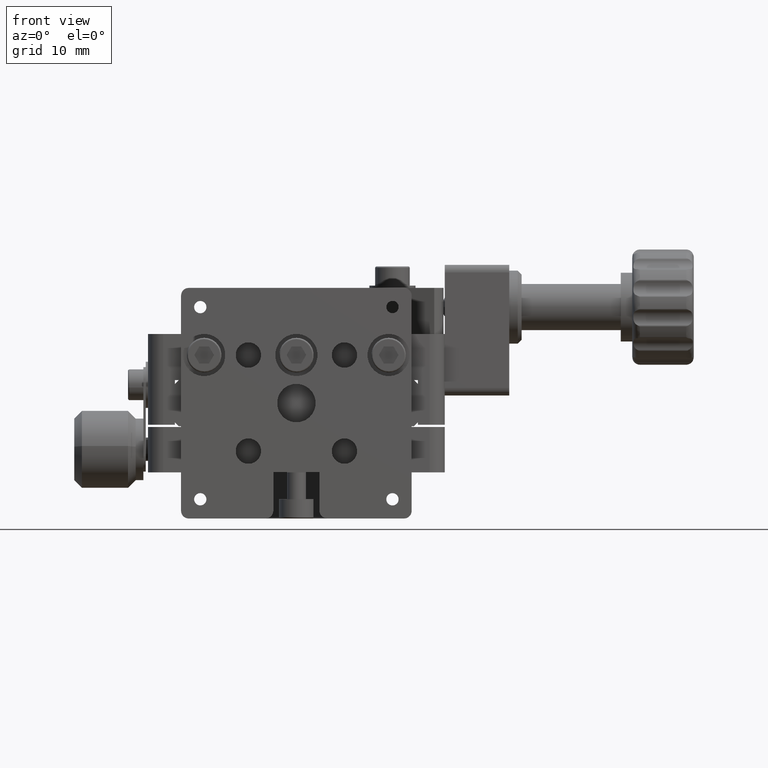
[diagram: clean part render]
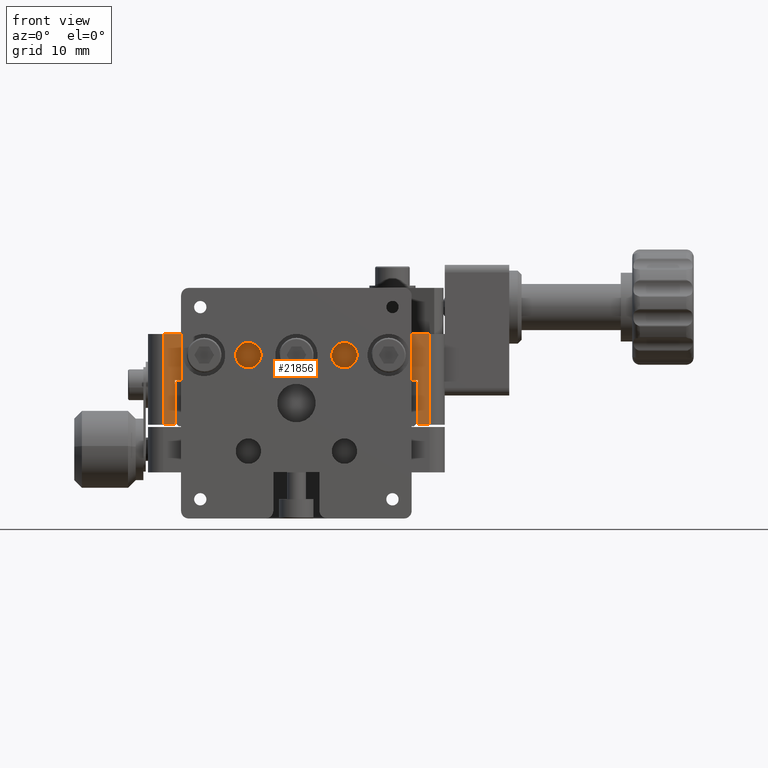
[diagram: same view with one face highlighted and labeled with its STEP entity id]
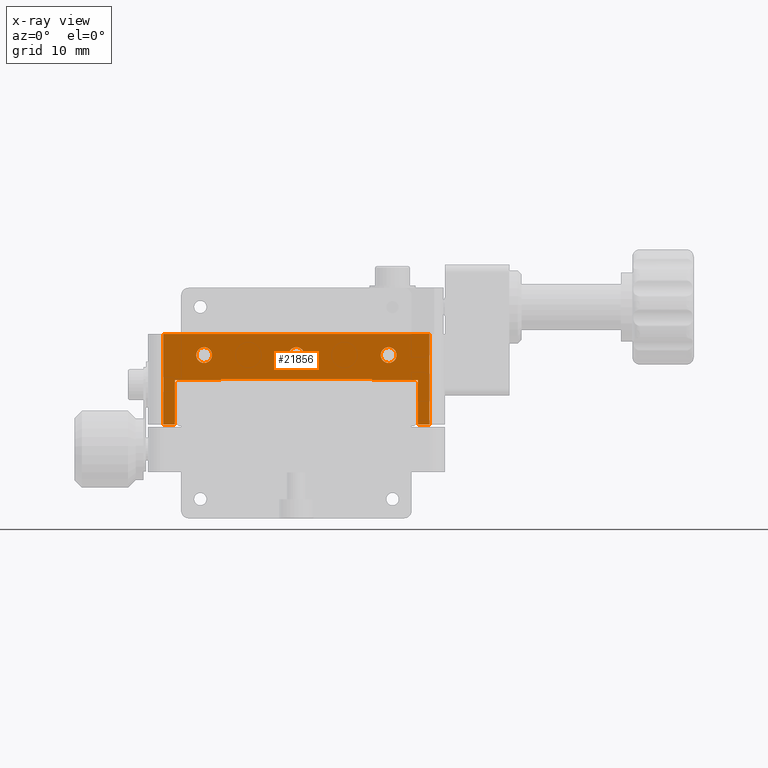
[diagram: x-ray of the same camera — body ghosted, the highlighted face saturated]
A machine part, front view. The second image highlights one B-rep face of the part: STEP entity #21856.
The next image is the same camera in x-ray: the body ghosted, the highlighted face saturated — about 0% of this face is hidden behind the body in this view.
In plain terms, the highlighted planar face has unit normal (0, -1, 0).
Its self-contained STEP definition (entity closure, byte-faithful):
#626 = EDGE_LOOP ( 'NONE', ( #10975, #15953, #10788, #31137, #29457, #4590, #32867, #9872, #2431, #28907, #16954, #21632 ) ) ;
#676 = VERTEX_POINT ( 'NONE', #6443 ) ;
#830 = EDGE_CURVE ( 'NONE', #10590, #19695, #19789, .T. ) ;
#1061 = LINE ( 'NONE', #5337, #19368 ) ;
#1240 = EDGE_CURVE ( 'NONE', #29394, #19813, #9852, .T. ) ;
#1337 = CARTESIAN_POINT ( 'NONE',  ( 16.76904537260123000, -33.63851180073592000, 39.00000000000000000 ) ) ;
#1556 = EDGE_CURVE ( 'NONE', #25964, #22088, #19579, .T. ) ;
#1655 = DIRECTION ( 'NONE',  ( 1.000000000000000000, 0.0000000000000000000, 0.0000000000000000000 ) ) ;
#1678 = EDGE_LOOP ( 'NONE', ( #21120, #13531 ) ) ;
#1765 = EDGE_CURVE ( 'NONE', #22088, #676, #23942, .T. ) ;
#1841 = DIRECTION ( 'NONE',  ( 1.000000000000000000, 9.629649721936181000E-031, -4.336808689942018700E-016 ) ) ;
#2078 = DIRECTION ( 'NONE',  ( 0.0000000000000000000, -1.000000000000000000, 2.442490654175344800E-015 ) ) ;
#2141 = CARTESIAN_POINT ( 'NONE',  ( -10.33095462739878600, -33.63851180073592000, 33.10000000000022200 ) ) ;
#2431 = ORIENTED_EDGE ( 'NONE', *, *, #28050, .T. ) ;
#2565 = CARTESIAN_POINT ( 'NONE',  ( -16.33095462739877800, -33.63851180073592000, 32.99999999999999300 ) ) ;
#2698 = AXIS2_PLACEMENT_3D ( 'NONE', #21590, #8910, #6153 ) ;
#2708 = FACE_BOUND ( 'NONE', #19711, .T. ) ;
#3246 = CIRCLE ( 'NONE', #32838, 1.024999999999989500 ) ;
#3276 = DIRECTION ( 'NONE',  ( 0.0000000000000000000, -2.220446049250313500E-015, 1.000000000000000000 ) ) ;
#3316 = LINE ( 'NONE', #28300, #19570 ) ;
#3538 = CIRCLE ( 'NONE', #24243, 1.024999999999989500 ) ;
#3886 = CARTESIAN_POINT ( 'NONE',  ( -16.33095462739877800, -33.63851180073592000, 32.99999999999999300 ) ) ;
#3998 = DIRECTION ( 'NONE',  ( 0.0000000000000000000, -2.220446049250313500E-015, 1.000000000000000000 ) ) ;
#4590 = ORIENTED_EDGE ( 'NONE', *, *, #15676, .T. ) ;
#4674 = CARTESIAN_POINT ( 'NONE',  ( 16.76904537260123000, -33.63851180073592000, 27.20000000000003800 ) ) ;
#4753 = CARTESIAN_POINT ( 'NONE',  ( 16.76904537260123000, -33.63851180073592000, 27.20000000000003800 ) ) ;
#5197 = CARTESIAN_POINT ( 'NONE',  ( 11.46904537260122800, -33.63851180073592000, 36.25000000000000700 ) ) ;
#5337 = CARTESIAN_POINT ( 'NONE',  ( 16.76904537260123000, -33.63851180073592000, 27.20000000000003800 ) ) ;
#5443 = LINE ( 'NONE', #24067, #32087 ) ;
#5808 = VECTOR ( 'NONE', #9297, 1000.000000000000000 ) ;
#6153 = DIRECTION ( 'NONE',  ( 1.000000000000000000, 0.0000000000000000000, 0.0000000000000000000 ) ) ;
#6210 = VERTEX_POINT ( 'NONE', #29220 ) ;
#6344 = CARTESIAN_POINT ( 'NONE',  ( -16.33095462739877800, -33.63851180073592000, 32.99999999999999300 ) ) ;
#6443 = CARTESIAN_POINT ( 'NONE',  ( 9.269045372601235400, -33.63851180073592000, 32.99999999999999300 ) ) ;
#6788 = CIRCLE ( 'NONE', #18253, 1.024999999999989500 ) ;
#7213 = CARTESIAN_POINT ( 'NONE',  ( 16.76904537260123000, -33.63851180073592000, 39.00000000000000000 ) ) ;
#7558 = EDGE_CURVE ( 'NONE', #23531, #31782, #5443, .T. ) ;
#7721 = DIRECTION ( 'NONE',  ( 1.000000000000000000, 0.0000000000000000000, 0.0000000000000000000 ) ) ;
#8377 = VERTEX_POINT ( 'NONE', #9569 ) ;
#8746 = EDGE_CURVE ( 'NONE', #8377, #25964, #8750, .T. ) ;
#8750 = LINE ( 'NONE', #32780, #20275 ) ;
#8864 = LINE ( 'NONE', #6344, #13202 ) ;
#8910 = DIRECTION ( 'NONE',  ( 0.0000000000000000000, -1.000000000000000000, 2.442490654175344800E-015 ) ) ;
#9297 = DIRECTION ( 'NONE',  ( 1.000000000000000000, 6.419766481290797000E-031, -2.891205793294682800E-016 ) ) ;
#9569 = CARTESIAN_POINT ( 'NONE',  ( -10.33095462739878600, -33.63851180073592000, 32.99999999999999300 ) ) ;
#9792 = LINE ( 'NONE', #4674, #24509 ) ;
#9852 = CIRCLE ( 'NONE', #21541, 1.024999999999989500 ) ;
#9872 = ORIENTED_EDGE ( 'NONE', *, *, #22516, .T. ) ;
#10026 = DIRECTION ( 'NONE',  ( 0.0000000000000000000, -1.000000000000000000, 2.442490654175344800E-015 ) ) ;
#10084 = CARTESIAN_POINT ( 'NONE',  ( -16.33095462739877800, -33.63851180073592000, 27.20000000000003800 ) ) ;
#10441 = LINE ( 'NONE', #4753, #25588 ) ;
#10511 = DIRECTION ( 'NONE',  ( 0.0000000000000000000, -2.220446049250313500E-015, 1.000000000000000000 ) ) ;
#10590 = VERTEX_POINT ( 'NONE', #32369 ) ;
#10788 = ORIENTED_EDGE ( 'NONE', *, *, #8746, .T. ) ;
#10975 = ORIENTED_EDGE ( 'NONE', *, *, #24874, .T. ) ;
#11025 = FACE_BOUND ( 'NONE', #1678, .T. ) ;
#11623 = DIRECTION ( 'NONE',  ( 0.0000000000000000000, -1.000000000000000000, 2.442490654175344800E-015 ) ) ;
#11890 = EDGE_CURVE ( 'NONE', #24590, #8377, #20090, .T. ) ;
#12592 = DIRECTION ( 'NONE',  ( 1.000000000000000000, 0.0000000000000000000, 0.0000000000000000000 ) ) ;
#13202 = VECTOR ( 'NONE', #3998, 1000.000000000000000 ) ;
#13467 = VECTOR ( 'NONE', #1841, 1000.000000000000000 ) ;
#13531 = ORIENTED_EDGE ( 'NONE', *, *, #19402, .F. ) ;
#13548 = EDGE_CURVE ( 'NONE', #13607, #29607, #10441, .T. ) ;
#13607 = VERTEX_POINT ( 'NONE', #20176 ) ;
#13674 = DIRECTION ( 'NONE',  ( 1.000000000000000000, 0.0000000000000000000, 0.0000000000000000000 ) ) ;
#13858 = CARTESIAN_POINT ( 'NONE',  ( 9.269045372601235400, -33.63851180073592000, 33.10000000000021500 ) ) ;
#14422 = CARTESIAN_POINT ( 'NONE',  ( 0.4940453726012175000, -33.63851180073592000, 36.25000000000000700 ) ) ;
#14431 = EDGE_CURVE ( 'NONE', #6210, #24170, #3246, .T. ) ;
#14472 = DIRECTION ( 'NONE',  ( 1.000000000000000000, 0.0000000000000000000, 0.0000000000000000000 ) ) ;
#14628 = DIRECTION ( 'NONE',  ( 1.000000000000000000, 0.0000000000000000000, 0.0000000000000000000 ) ) ;
#14737 = CARTESIAN_POINT ( 'NONE',  ( 15.26904537260123400, -33.63851180073592000, 32.99999999999999300 ) ) ;
#14780 = VECTOR ( 'NONE', #30178, 1000.000000000000000 ) ;
#14813 = CARTESIAN_POINT ( 'NONE',  ( 11.46904537260122800, -33.63851180073592000, 36.25000000000000700 ) ) ;
#14984 = EDGE_CURVE ( 'NONE', #18940, #23624, #29467, .T. ) ;
#15164 = DIRECTION ( 'NONE',  ( 1.000000000000000000, 0.0000000000000000000, 0.0000000000000000000 ) ) ;
#15402 = FACE_OUTER_BOUND ( 'NONE', #626, .T. ) ;
#15676 = EDGE_CURVE ( 'NONE', #676, #23531, #20251, .T. ) ;
#15831 = CARTESIAN_POINT ( 'NONE',  ( -0.5309546273987719700, -33.63851180073592000, 36.25000000000000700 ) ) ;
#15953 = ORIENTED_EDGE ( 'NONE', *, *, #11890, .T. ) ;
#16185 = FACE_BOUND ( 'NONE', #21813, .T. ) ;
#16374 = DIRECTION ( 'NONE',  ( 0.0000000000000000000, 2.220446049250313500E-015, -1.000000000000000000 ) ) ;
#16864 = CARTESIAN_POINT ( 'NONE',  ( -12.53095462739877200, -33.63851180073592000, 36.25000000000000700 ) ) ;
#16954 = ORIENTED_EDGE ( 'NONE', *, *, #32488, .F. ) ;
#17047 = CARTESIAN_POINT ( 'NONE',  ( 15.26904537260123400, -33.63851180073592000, 32.99999999999999300 ) ) ;
#17160 = DIRECTION ( 'NONE',  ( 1.000000000000000000, 0.0000000000000000000, 0.0000000000000000000 ) ) ;
#17613 = DIRECTION ( 'NONE',  ( 0.0000000000000000000, -2.220446049250313500E-015, 1.000000000000000000 ) ) ;
#18018 = EDGE_CURVE ( 'NONE', #19813, #29394, #23181, .T. ) ;
#18163 = ORIENTED_EDGE ( 'NONE', *, *, #1240, .F. ) ;
#18253 = AXIS2_PLACEMENT_3D ( 'NONE', #5197, #32882, #12592 ) ;
#18760 = VECTOR ( 'NONE', #23906, 1000.000000000000000 ) ;
#18940 = VERTEX_POINT ( 'NONE', #30582 ) ;
#19169 = DIRECTION ( 'NONE',  ( 0.0000000000000000000, -1.000000000000000000, 2.442490654175344800E-015 ) ) ;
#19198 = CARTESIAN_POINT ( 'NONE',  ( -1.555954627398761400, -33.63851180073592000, 36.25000000000000000 ) ) ;
#19368 = VECTOR ( 'NONE', #10511, 1000.000000000000000 ) ;
#19402 = EDGE_CURVE ( 'NONE', #24170, #6210, #6788, .T. ) ;
#19570 = VECTOR ( 'NONE', #3276, 1000.000000000000000 ) ;
#19579 = LINE ( 'NONE', #2141, #14780 ) ;
#19695 = VERTEX_POINT ( 'NONE', #1337 ) ;
#19711 = EDGE_LOOP ( 'NONE', ( #23013, #20593 ) ) ;
#19789 = LINE ( 'NONE', #7213, #21406 ) ;
#19813 = VERTEX_POINT ( 'NONE', #14422 ) ;
#20063 = DIRECTION ( 'NONE',  ( 1.000000000000000000, 0.0000000000000000000, 0.0000000000000000000 ) ) ;
#20090 = LINE ( 'NONE', #3886, #5808 ) ;
#20176 = CARTESIAN_POINT ( 'NONE',  ( -17.83095462739877500, -33.63851180073592000, 27.20000000000003800 ) ) ;
#20251 = LINE ( 'NONE', #17047, #13467 ) ;
#20275 = VECTOR ( 'NONE', #17613, 1000.000000000000000 ) ;
#20593 = ORIENTED_EDGE ( 'NONE', *, *, #14984, .F. ) ;
#20974 = ORIENTED_EDGE ( 'NONE', *, *, #18018, .F. ) ;
#21058 = DIRECTION ( 'NONE',  ( 0.0000000000000000000, -1.000000000000000000, 2.442490654175344800E-015 ) ) ;
#21120 = ORIENTED_EDGE ( 'NONE', *, *, #14431, .F. ) ;
#21307 = EDGE_CURVE ( 'NONE', #23624, #18940, #3538, .T. ) ;
#21406 = VECTOR ( 'NONE', #20063, 1000.000000000000000 ) ;
#21541 = AXIS2_PLACEMENT_3D ( 'NONE', #15831, #21058, #13674 ) ;
#21590 = CARTESIAN_POINT ( 'NONE',  ( -0.5309546273987719700, -33.63851180073592000, 36.25000000000000700 ) ) ;
#21632 = ORIENTED_EDGE ( 'NONE', *, *, #13548, .T. ) ;
#21813 = EDGE_LOOP ( 'NONE', ( #20974, #18163 ) ) ;
#21856 = ADVANCED_FACE ( 'NONE', ( #11025, #16185, #2708, #15402 ), #31799, .T. ) ;
#22088 = VERTEX_POINT ( 'NONE', #28499 ) ;
#22516 = EDGE_CURVE ( 'NONE', #31782, #22548, #9792, .T. ) ;
#22548 = VERTEX_POINT ( 'NONE', #33049 ) ;
#23013 = ORIENTED_EDGE ( 'NONE', *, *, #21307, .F. ) ;
#23181 = CIRCLE ( 'NONE', #2698, 1.024999999999989500 ) ;
#23531 = VERTEX_POINT ( 'NONE', #14737 ) ;
#23624 = VERTEX_POINT ( 'NONE', #32377 ) ;
#23906 = DIRECTION ( 'NONE',  ( 0.0000000000000000000, 2.220446049250313500E-015, -1.000000000000000000 ) ) ;
#23942 = LINE ( 'NONE', #13858, #18760 ) ;
#24067 = CARTESIAN_POINT ( 'NONE',  ( 15.26904537260123400, -33.63851180073592000, 32.99999999999999300 ) ) ;
#24072 = CARTESIAN_POINT ( 'NONE',  ( 16.76904537260123000, -33.63851180073592000, 27.20000000000003800 ) ) ;
#24170 = VERTEX_POINT ( 'NONE', #25082 ) ;
#24243 = AXIS2_PLACEMENT_3D ( 'NONE', #16864, #11623, #1655 ) ;
#24509 = VECTOR ( 'NONE', #14628, 1000.000000000000000 ) ;
#24590 = VERTEX_POINT ( 'NONE', #2565 ) ;
#24728 = AXIS2_PLACEMENT_3D ( 'NONE', #25280, #10026, #7721 ) ;
#24874 = EDGE_CURVE ( 'NONE', #29607, #24590, #8864, .T. ) ;
#24929 = CARTESIAN_POINT ( 'NONE',  ( -10.33095462739878600, -33.63851180073592000, 33.10000000000022200 ) ) ;
#25082 = CARTESIAN_POINT ( 'NONE',  ( 10.44404537260124000, -33.63851180073592000, 36.25000000000000000 ) ) ;
#25280 = CARTESIAN_POINT ( 'NONE',  ( -12.53095462739877200, -33.63851180073592000, 36.25000000000000700 ) ) ;
#25588 = VECTOR ( 'NONE', #17160, 1000.000000000000000 ) ;
#25964 = VERTEX_POINT ( 'NONE', #24929 ) ;
#27480 = AXIS2_PLACEMENT_3D ( 'NONE', #24072, #19169, #14472 ) ;
#28050 = EDGE_CURVE ( 'NONE', #22548, #19695, #1061, .T. ) ;
#28300 = CARTESIAN_POINT ( 'NONE',  ( -17.83095462739877500, -33.63851180073592000, 27.20000000000003800 ) ) ;
#28499 = CARTESIAN_POINT ( 'NONE',  ( 9.269045372601235400, -33.63851180073592000, 33.10000000000021500 ) ) ;
#28907 = ORIENTED_EDGE ( 'NONE', *, *, #830, .F. ) ;
#29220 = CARTESIAN_POINT ( 'NONE',  ( 12.49404537260121700, -33.63851180073592000, 36.25000000000000700 ) ) ;
#29394 = VERTEX_POINT ( 'NONE', #19198 ) ;
#29457 = ORIENTED_EDGE ( 'NONE', *, *, #1765, .T. ) ;
#29467 = CIRCLE ( 'NONE', #24728, 1.024999999999989500 ) ;
#29607 = VERTEX_POINT ( 'NONE', #10084 ) ;
#29936 = CARTESIAN_POINT ( 'NONE',  ( 15.26904537260123400, -33.63851180073592000, 27.20000000000003800 ) ) ;
#30178 = DIRECTION ( 'NONE',  ( 1.000000000000000000, 2.947851955694745900E-031, -1.327594496921024500E-016 ) ) ;
#30582 = CARTESIAN_POINT ( 'NONE',  ( -13.55595462739876200, -33.63851180073592000, 36.25000000000000000 ) ) ;
#31137 = ORIENTED_EDGE ( 'NONE', *, *, #1556, .T. ) ;
#31782 = VERTEX_POINT ( 'NONE', #29936 ) ;
#31799 = PLANE ( 'NONE',  #27480 ) ;
#32087 = VECTOR ( 'NONE', #16374, 1000.000000000000000 ) ;
#32369 = CARTESIAN_POINT ( 'NONE',  ( -17.83095462739877500, -33.63851180073592000, 39.00000000000000000 ) ) ;
#32377 = CARTESIAN_POINT ( 'NONE',  ( -11.50595462739878300, -33.63851180073592000, 36.25000000000000700 ) ) ;
#32488 = EDGE_CURVE ( 'NONE', #13607, #10590, #3316, .T. ) ;
#32780 = CARTESIAN_POINT ( 'NONE',  ( -10.33095462739878600, -33.63851180073592000, 33.10000000000022200 ) ) ;
#32838 = AXIS2_PLACEMENT_3D ( 'NONE', #14813, #2078, #15164 ) ;
#32867 = ORIENTED_EDGE ( 'NONE', *, *, #7558, .T. ) ;
#32882 = DIRECTION ( 'NONE',  ( 0.0000000000000000000, -1.000000000000000000, 2.442490654175344800E-015 ) ) ;
#33049 = CARTESIAN_POINT ( 'NONE',  ( 16.76904537260123000, -33.63851180073592000, 27.20000000000003800 ) ) ;